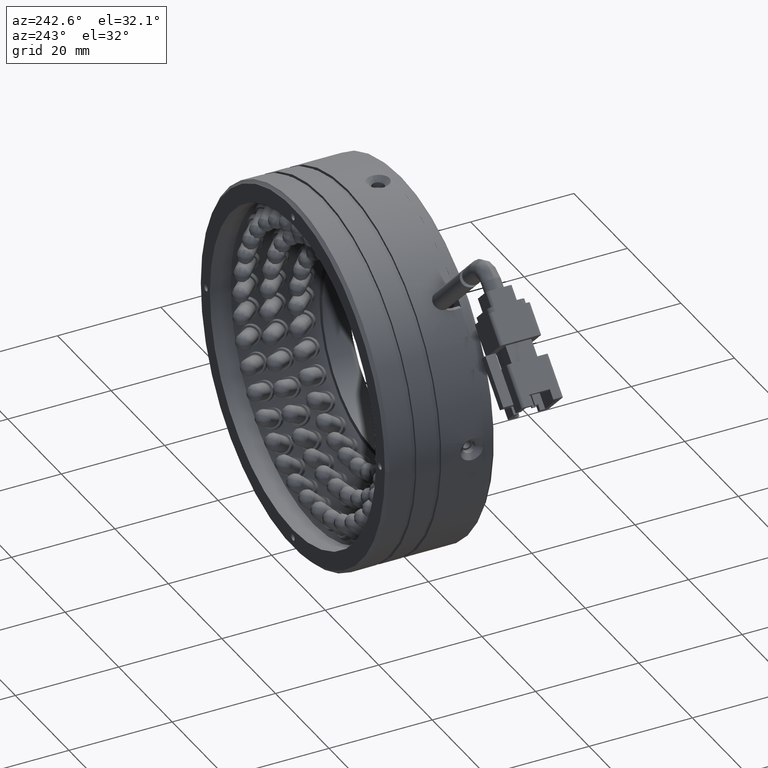
[diagram: clean part render]
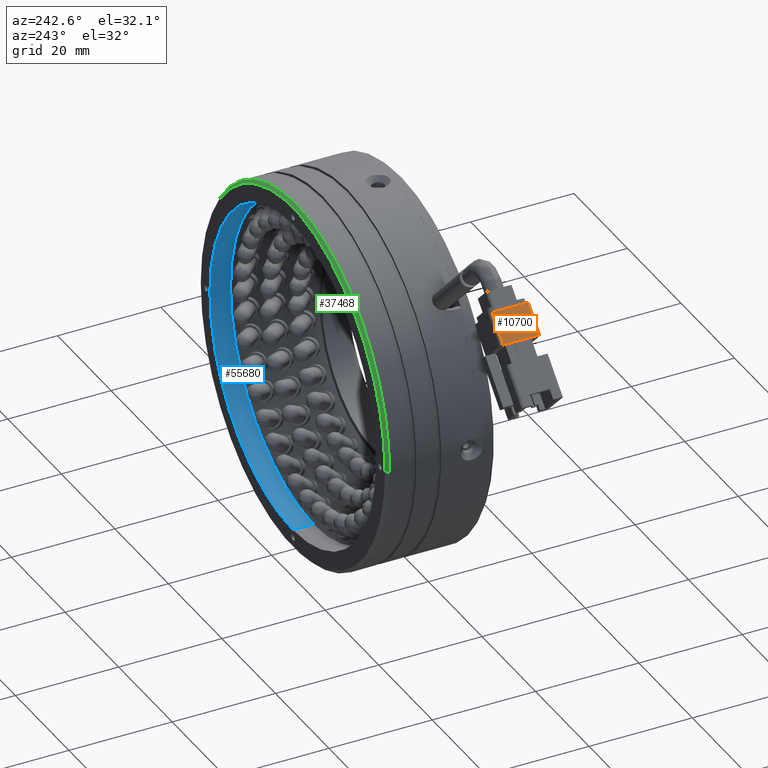
[diagram: same view with three faces highlighted in distinct colors, each labeled with its STEP entity id]
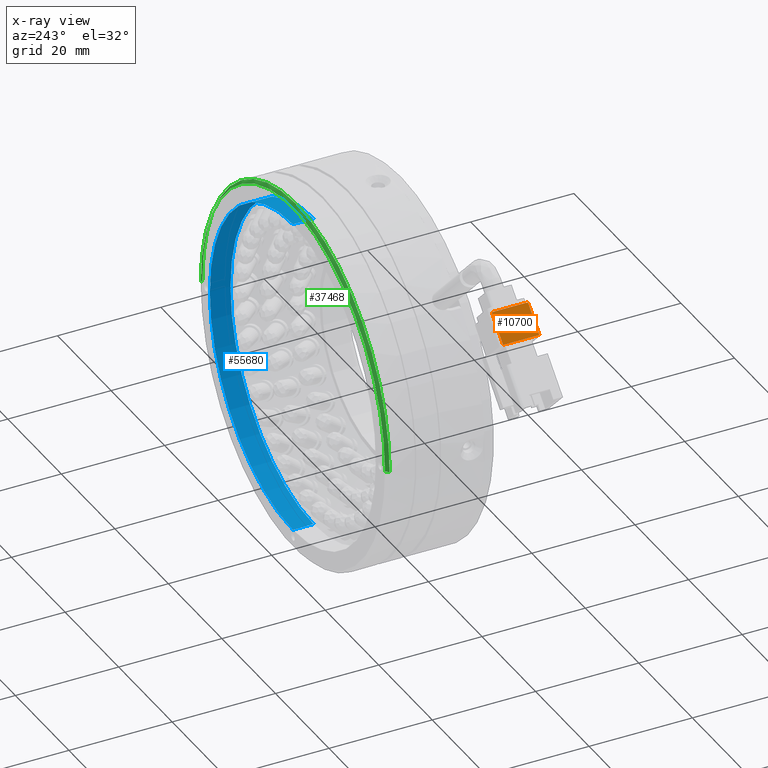
[diagram: x-ray of the same camera — body ghosted, the three highlighted faces saturated]
A machine part, auxiliary view with three faces highlighted in distinct colors.
The next image is the same camera in x-ray (body ghosted, the three faces saturated) — at least one of them is partly hidden behind the body in this view.
Their STEP definitions:

[orange] entity #10700 — the highlighted planar face has unit normal (0.7071, 0, -0.7071).
#2270 = VECTOR ( 'NONE', #83772, 999.9999999999998900 ) ;
#2571 = DIRECTION ( 'NONE',  ( -1.383106069708946600E-016, 1.000000000000000000, -3.207812171823815400E-017 ) ) ;
#2651 = VECTOR ( 'NONE', #2571, 1000.000000000000000 ) ;
#3557 = ORIENTED_EDGE ( 'NONE', *, *, #48153, .F. ) ;
#4504 = VERTEX_POINT ( 'NONE', #64232 ) ;
#4976 = EDGE_CURVE ( 'NONE', #4504, #57872, #73578, .T. ) ;
#6696 = AXIS2_PLACEMENT_3D ( 'NONE', #69225, #29124, #76007 ) ;
#9530 = VERTEX_POINT ( 'NONE', #26316 ) ;
#10632 = FACE_OUTER_BOUND ( 'NONE', #20022, .T. ) ;
#10700 = ADVANCED_FACE ( 'NONE', ( #10632 ), #75698, .F. ) ;
#11330 = DIRECTION ( 'NONE',  ( -0.7071067811865510100, -1.149673585146709700E-017, -0.7071067811865441300 ) ) ;
#20022 = EDGE_LOOP ( 'NONE', ( #48762, #34701, #21004, #3557 ) ) ;
#20443 = LINE ( 'NONE', #29231, #2651 ) ;
#21004 = ORIENTED_EDGE ( 'NONE', *, *, #4976, .F. ) ;
#21941 = VERTEX_POINT ( 'NONE', #38677 ) ;
#26316 = CARTESIAN_POINT ( 'NONE',  ( -57.16329317175546300, -2.192728664891304900, 33.23401871576801600 ) ) ;
#29124 = DIRECTION ( 'NONE',  ( 0.7071067811865441300, 2.632660169627630400E-017, -0.7071067811865510100 ) ) ;
#29231 = CARTESIAN_POINT ( 'NONE',  ( -57.16329317175544800, 4.807271335108695500, 33.23401871576802300 ) ) ;
#34701 = ORIENTED_EDGE ( 'NONE', *, *, #36309, .F. ) ;
#36309 = EDGE_CURVE ( 'NONE', #57872, #21941, #57085, .T. ) ;
#36878 = CARTESIAN_POINT ( 'NONE',  ( -52.92065248463616500, 4.807271335108695500, 37.47665940288728600 ) ) ;
#38677 = CARTESIAN_POINT ( 'NONE',  ( -52.92065248463617200, -2.192728664891304000, 37.47665940288727900 ) ) ;
#48153 = EDGE_CURVE ( 'NONE', #9530, #4504, #20443, .T. ) ;
#48762 = ORIENTED_EDGE ( 'NONE', *, *, #53771, .F. ) ;
#49562 = LINE ( 'NONE', #58186, #67362 ) ;
#52598 = DIRECTION ( 'NONE',  ( 2.674513846711706500E-017, -1.000000000000000000, -1.048629870295148500E-017 ) ) ;
#53771 = EDGE_CURVE ( 'NONE', #21941, #9530, #49562, .T. ) ;
#57085 = LINE ( 'NONE', #85966, #74912 ) ;
#57872 = VERTEX_POINT ( 'NONE', #79028 ) ;
#58186 = CARTESIAN_POINT ( 'NONE',  ( -52.92065248463616500, -2.192728664891304000, 37.47665940288728600 ) ) ;
#64232 = CARTESIAN_POINT ( 'NONE',  ( -57.16329317175546300, 4.807271335108694600, 33.23401871576801600 ) ) ;
#67362 = VECTOR ( 'NONE', #11330, 999.9999999999998900 ) ;
#69225 = CARTESIAN_POINT ( 'NONE',  ( -52.92065248463616500, 4.807271335108695500, 37.47665940288728600 ) ) ;
#73578 = LINE ( 'NONE', #36878, #2270 ) ;
#74912 = VECTOR ( 'NONE', #52598, 1000.000000000000000 ) ;
#75698 = PLANE ( 'NONE',  #6696 ) ;
#76007 = DIRECTION ( 'NONE',  ( -0.7071067811865510100, -1.149673585146709700E-017, -0.7071067811865441300 ) ) ;
#79028 = CARTESIAN_POINT ( 'NONE',  ( -52.92065248463616500, 4.807271335108695500, 37.47665940288728600 ) ) ;
#83772 = DIRECTION ( 'NONE',  ( 0.7071067811865510100, 1.149673585146709700E-017, 0.7071067811865441300 ) ) ;
#85966 = CARTESIAN_POINT ( 'NONE',  ( -52.92065248463616500, 4.807271335108695500, 37.47665940288728600 ) ) ;

[blue] entity #55680 — the highlighted cylindrical surface (partial cylindrical patch) has radius 31 mm, axis along (-0, -1, -0).
#2865 = AXIS2_PLACEMENT_3D ( 'NONE', #25593, #72481, #32294 ) ;
#3597 = EDGE_CURVE ( 'NONE', #12495, #41704, #82635, .T. ) ;
#6549 = VECTOR ( 'NONE', #40157, 1000.000000000000000 ) ;
#9864 = CARTESIAN_POINT ( 'NONE',  ( -2.716071020391490200, 17.30727133510869800, -31.00000000000003600 ) ) ;
#12495 = VERTEX_POINT ( 'NONE', #9864 ) ;
#12750 = EDGE_CURVE ( 'NONE', #12495, #39875, #36103, .T. ) ;
#16191 = ORIENTED_EDGE ( 'NONE', *, *, #64252, .T. ) ;
#19295 = CARTESIAN_POINT ( 'NONE',  ( -2.716071020391486200, -13.32601881678534500, 31.00000000000003600 ) ) ;
#20478 = CYLINDRICAL_SURFACE ( 'NONE', #44149, 31.00000000000003600 ) ;
#22453 = EDGE_LOOP ( 'NONE', ( #49665, #43074, #63915, #16191 ) ) ;
#22472 = VECTOR ( 'NONE', #85684, 1000.000000000000000 ) ;
#23183 = CIRCLE ( 'NONE', #76902, 31.00000000000003600 ) ;
#25593 = CARTESIAN_POINT ( 'NONE',  ( -2.716071020391490200, 17.30727133510869800, -1.131636017531745300E-015 ) ) ;
#28822 = VERTEX_POINT ( 'NONE', #67410 ) ;
#30460 = DIRECTION ( 'NONE',  ( -0.0000000000000000000, -1.000000000000000000, -0.0000000000000000000 ) ) ;
#32294 = DIRECTION ( 'NONE',  ( 0.0000000000000000000, 0.0000000000000000000, -1.000000000000000000 ) ) ;
#36103 = LINE ( 'NONE', #79016, #22472 ) ;
#37269 = DIRECTION ( 'NONE',  ( -0.0000000000000000000, -1.000000000000000000, -0.0000000000000000000 ) ) ;
#39875 = VERTEX_POINT ( 'NONE', #52265 ) ;
#40157 = DIRECTION ( 'NONE',  ( -0.0000000000000000000, -1.000000000000000000, -0.0000000000000000000 ) ) ;
#41704 = VERTEX_POINT ( 'NONE', #66368 ) ;
#43074 = ORIENTED_EDGE ( 'NONE', *, *, #3597, .F. ) ;
#43974 = CARTESIAN_POINT ( 'NONE',  ( -2.716071020391490200, -13.32601881678534500, -1.131636017531745300E-015 ) ) ;
#44149 = AXIS2_PLACEMENT_3D ( 'NONE', #43974, #30460, #44256 ) ;
#44256 = DIRECTION ( 'NONE',  ( 0.0000000000000000000, 0.0000000000000000000, -1.000000000000000000 ) ) ;
#49665 = ORIENTED_EDGE ( 'NONE', *, *, #84178, .F. ) ;
#52265 = CARTESIAN_POINT ( 'NONE',  ( -2.716071020391490200, 13.30727133510869500, -31.00000000000003600 ) ) ;
#55680 = ADVANCED_FACE ( 'NONE', ( #80342 ), #20478, .F. ) ;
#63915 = ORIENTED_EDGE ( 'NONE', *, *, #12750, .T. ) ;
#64252 = EDGE_CURVE ( 'NONE', #39875, #28822, #23183, .T. ) ;
#66368 = CARTESIAN_POINT ( 'NONE',  ( -2.716071020391486200, 17.30727133510869800, 31.00000000000003600 ) ) ;
#67410 = CARTESIAN_POINT ( 'NONE',  ( -2.716071020391486200, 13.30727133510869500, 31.00000000000003600 ) ) ;
#72481 = DIRECTION ( 'NONE',  ( -0.0000000000000000000, -1.000000000000000000, -0.0000000000000000000 ) ) ;
#75746 = LINE ( 'NONE', #19295, #6549 ) ;
#76902 = AXIS2_PLACEMENT_3D ( 'NONE', #77441, #37269, #84163 ) ;
#77441 = CARTESIAN_POINT ( 'NONE',  ( -2.716071020391490200, 13.30727133510869500, -1.131636017531745300E-015 ) ) ;
#79016 = CARTESIAN_POINT ( 'NONE',  ( -2.716071020391490200, -13.32601881678534500, -31.00000000000003600 ) ) ;
#80342 = FACE_OUTER_BOUND ( 'NONE', #22453, .T. ) ;
#82635 = CIRCLE ( 'NONE', #2865, 31.00000000000003600 ) ;
#84163 = DIRECTION ( 'NONE',  ( 0.0000000000000000000, 0.0000000000000000000, -1.000000000000000000 ) ) ;
#84178 = EDGE_CURVE ( 'NONE', #41704, #28822, #75746, .T. ) ;
#85684 = DIRECTION ( 'NONE',  ( -0.0000000000000000000, -1.000000000000000000, -0.0000000000000000000 ) ) ;

[green] entity #37468 — the highlighted conical surface has half-angle 45 deg.
#527 = DIRECTION ( 'NONE',  ( -4.956352788505163400E-017, -1.000000000000000000, 0.0000000000000000000 ) ) ;
#1695 = CARTESIAN_POINT ( 'NONE',  ( -37.11607102039153000, 17.30727133510869100, 3.117888375509573500E-015 ) ) ;
#2701 = EDGE_CURVE ( 'NONE', #14954, #6648, #86852, .T. ) ;
#4236 = CARTESIAN_POINT ( 'NONE',  ( -37.71607102039150300, 16.70727133510872900, 3.154627779483993200E-015 ) ) ;
#5200 = DIRECTION ( 'NONE',  ( 0.0000000000000000000, -9.912705577010321900E-017, -1.000000000000000000 ) ) ;
#6648 = VERTEX_POINT ( 'NONE', #4236 ) ;
#7160 = CIRCLE ( 'NONE', #37618, 35.00000000000001400 ) ;
#7385 = CARTESIAN_POINT ( 'NONE',  ( -2.716071020391490200, 16.70727133510872900, -1.131636017531745300E-015 ) ) ;
#13893 = CARTESIAN_POINT ( 'NONE',  ( -37.71607102039149600, 16.70727133510873200, 3.154627779483992400E-015 ) ) ;
#14109 = DIRECTION ( 'NONE',  ( 0.0000000000000000000, -9.912705577010321900E-017, -1.000000000000000000 ) ) ;
#14954 = VERTEX_POINT ( 'NONE', #1695 ) ;
#18148 = EDGE_CURVE ( 'NONE', #26677, #14954, #50003, .T. ) ;
#25334 = AXIS2_PLACEMENT_3D ( 'NONE', #40981, #527, #67894 ) ;
#26677 = VERTEX_POINT ( 'NONE', #49516 ) ;
#29266 = EDGE_CURVE ( 'NONE', #6648, #46923, #7160, .T. ) ;
#29572 = ORIENTED_EDGE ( 'NONE', *, *, #18148, .T. ) ;
#30525 = DIRECTION ( 'NONE',  ( -4.956352788505163400E-017, -1.000000000000000000, 0.0000000000000000000 ) ) ;
#31885 = ORIENTED_EDGE ( 'NONE', *, *, #29266, .T. ) ;
#34722 = EDGE_LOOP ( 'NONE', ( #29572, #38161, #31885, #75901, #67193 ) ) ;
#34797 = CARTESIAN_POINT ( 'NONE',  ( 32.28392897960851800, 16.70727133510872900, -1.131636017531745300E-015 ) ) ;
#37468 = ADVANCED_FACE ( 'NONE', ( #55591 ), #64969, .T. ) ;
#37618 = AXIS2_PLACEMENT_3D ( 'NONE', #85465, #45392, #5200 ) ;
#38161 = ORIENTED_EDGE ( 'NONE', *, *, #2701, .T. ) ;
#40865 = DIRECTION ( 'NONE',  ( -0.7071067811865536800, -0.7071067811865414700, 8.659560562355008000E-017 ) ) ;
#40981 = CARTESIAN_POINT ( 'NONE',  ( -2.716071020391490200, 16.70727133510872900, -1.131636017531745300E-015 ) ) ;
#42772 = EDGE_CURVE ( 'NONE', #26677, #52682, #47212, .T. ) ;
#45100 = VECTOR ( 'NONE', #53460, 1000.000000000000000 ) ;
#45392 = DIRECTION ( 'NONE',  ( 0.0000000000000000000, 1.000000000000000000, 0.0000000000000000000 ) ) ;
#46923 = VERTEX_POINT ( 'NONE', #71423 ) ;
#47212 = LINE ( 'NONE', #80193, #45100 ) ;
#49126 = VECTOR ( 'NONE', #40865, 1000.000000000000000 ) ;
#49516 = CARTESIAN_POINT ( 'NONE',  ( 31.68392897960855200, 17.30727133510869100, -1.131636017531745300E-015 ) ) ;
#50003 = CIRCLE ( 'NONE', #77534, 34.40000000000004100 ) ;
#52682 = VERTEX_POINT ( 'NONE', #34797 ) ;
#53460 = DIRECTION ( 'NONE',  ( 0.7071067811865536800, -0.7071067811865414700, 0.0000000000000000000 ) ) ;
#54287 = DIRECTION ( 'NONE',  ( 0.0000000000000000000, 1.000000000000000000, 0.0000000000000000000 ) ) ;
#55591 = FACE_OUTER_BOUND ( 'NONE', #34722, .T. ) ;
#57006 = EDGE_CURVE ( 'NONE', #46923, #52682, #77572, .T. ) ;
#64969 = CONICAL_SURFACE ( 'NONE', #25334, 35.00000000000000700, 0.7853981633974569400 ) ;
#67193 = ORIENTED_EDGE ( 'NONE', *, *, #42772, .F. ) ;
#67894 = DIRECTION ( 'NONE',  ( 1.000000000000000000, -9.912705577010324300E-017, 0.0000000000000000000 ) ) ;
#70653 = CARTESIAN_POINT ( 'NONE',  ( -2.716071020391490200, 17.30727133510869100, -1.131636017531745300E-015 ) ) ;
#71423 = CARTESIAN_POINT ( 'NONE',  ( -2.716071020391485700, 16.70727133510872900, 35.00000000000001400 ) ) ;
#75901 = ORIENTED_EDGE ( 'NONE', *, *, #57006, .T. ) ;
#77443 = DIRECTION ( 'NONE',  ( 1.000000000000000000, 0.0000000000000000000, 0.0000000000000000000 ) ) ;
#77534 = AXIS2_PLACEMENT_3D ( 'NONE', #70653, #30525, #77443 ) ;
#77572 = CIRCLE ( 'NONE', #84656, 35.00000000000001400 ) ;
#80193 = CARTESIAN_POINT ( 'NONE',  ( 32.28392897960852500, 16.70727133510872500, -1.131636017531745300E-015 ) ) ;
#84656 = AXIS2_PLACEMENT_3D ( 'NONE', #7385, #54287, #14109 ) ;
#85465 = CARTESIAN_POINT ( 'NONE',  ( -2.716071020391490200, 16.70727133510872900, -1.131636017531745300E-015 ) ) ;
#86852 = LINE ( 'NONE', #13893, #49126 ) ;